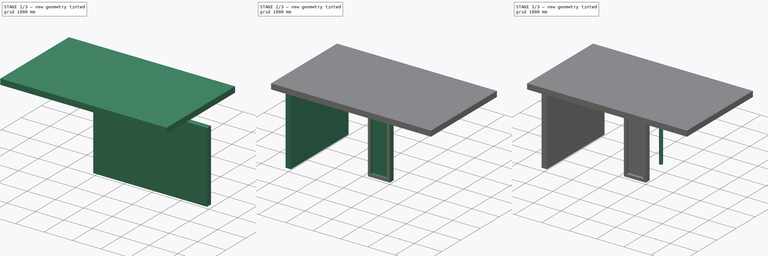
[diagram: build sequence overview — one tinted view per stage of 3, left to right]
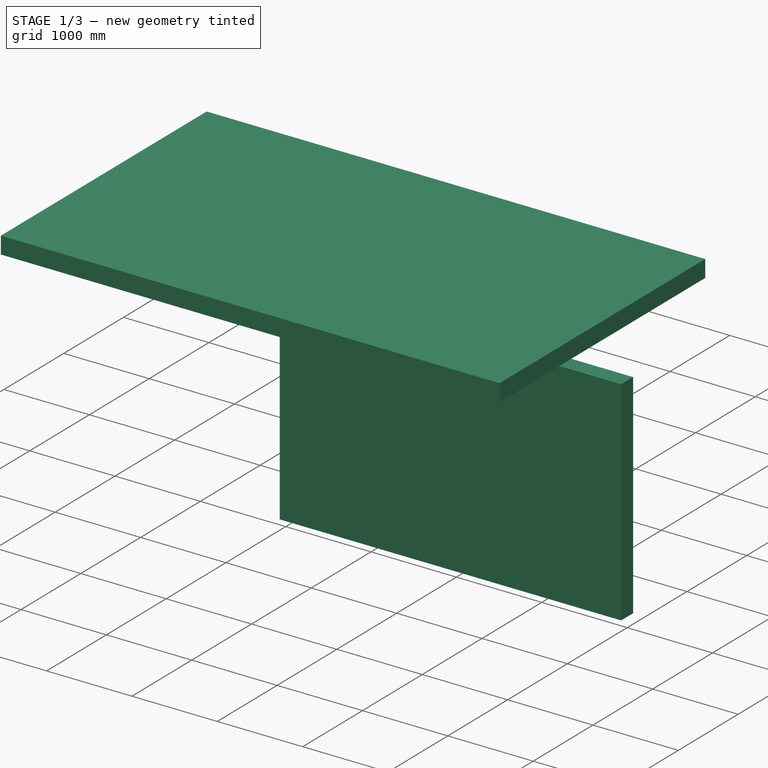
[diagram: stage 1 of 3 — iso view after this stage's code; geometry added in this stage tinted green]
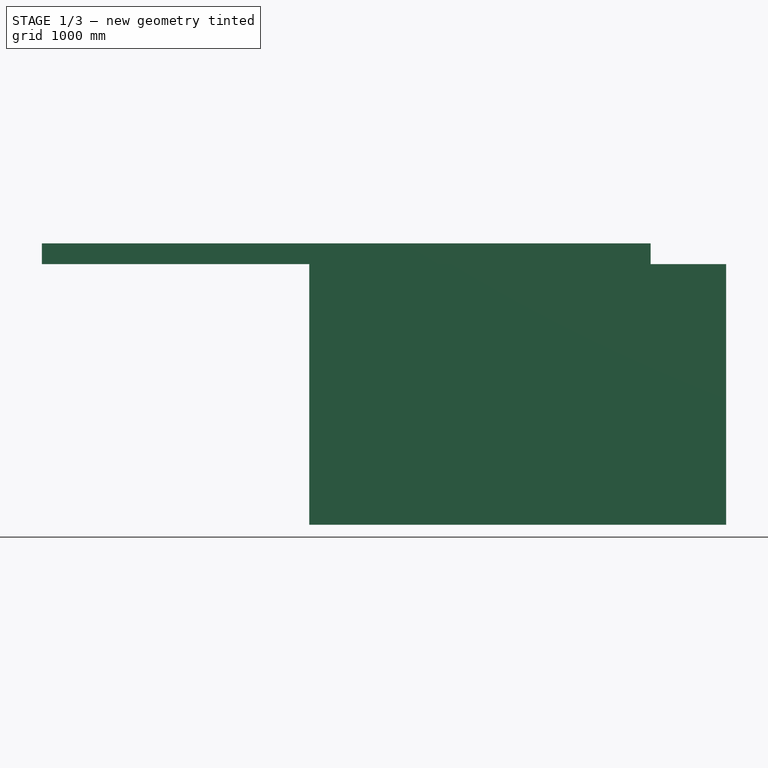
[diagram: stage 1 of 3 — front view after this stage's code; geometry added in this stage tinted green]
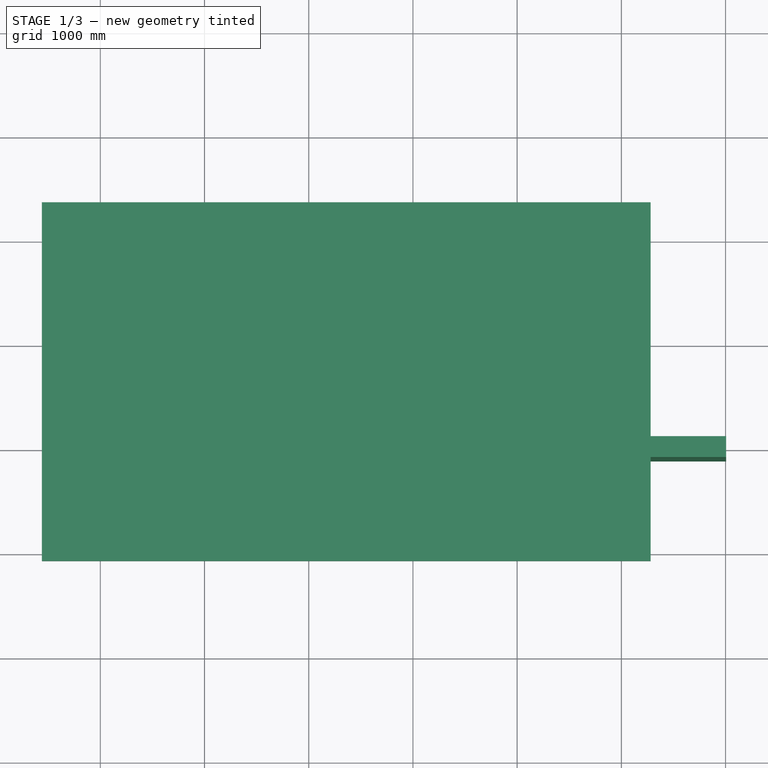
[diagram: stage 1 of 3 — top view after this stage's code; geometry added in this stage tinted green]
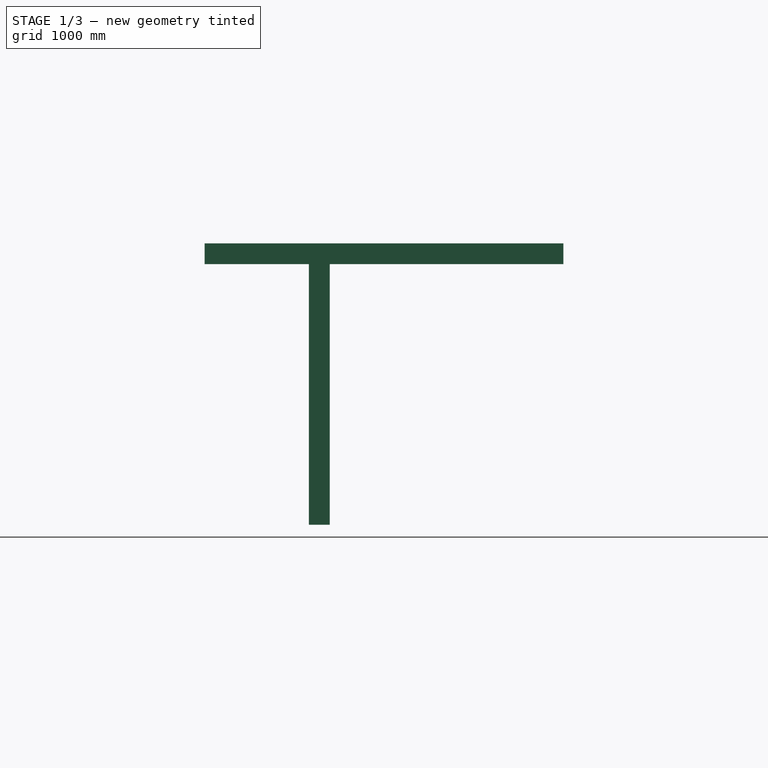
[diagram: stage 1 of 3 — right view after this stage's code; geometry added in this stage tinted green]
FCSTD DOCUMENT  (FreeCAD 0.19R24366 (Git))
Label: BimTutorial
License: All rights reserved
LicenseURL: http://en.wikipedia.org/wiki/All_rights_reserved
objects: Part::Part2DObjectPython×6, Part::FeaturePython×6, App::FeaturePython×4, Sketcher::SketchObject×1, App::DocumentObjectGroup×1, App::GeometryPython×1, TechDraw::DrawSVGTemplate×1, TechDraw::DrawViewArch×1, TechDraw::DrawPage×1
note: 16 computed .brp shape members not serialized (recipe doc carries the construction recipe); baked Part::Feature solids carry a one-line shape summary decoded from their .brp

FEATURE [Part::Part2DObjectPython] Line001  label="wall2line"  # Draft 2D object (typed FeaturePython)
  Area = 0
  ChamferSize = 0
  Closed = false
  End = (6004.87,993.111,0)
  FilletRadius = 0
  Length = 4000
  MakeFace = true
  Placement = pos=(1004.87,-6.88866,0) rot=(0,0,1;0rad)
  Points = (2) [(1000,1000,0),(5000,1000,0)]
  Start = (2004.87,993.111,0)
  Subdivisions = 0
FEATURE [Part::FeaturePython] Wall001  label="wall2"  # Arch/BIM 166 (typed FeaturePython)
  Align = 2
  Area = 10000000
  Base = -> Line001
  BlockHeight = 0
  BlockLength = 0
  CountBroken = 0
  CountEntire = 0
  Face = 0
  GlobalId = 09lF_A4UX7CefGfUJ7Y7Hv
  Height = 2500
  HorizontalArea = 960000
  IfcData = IfcUID=09lF_A4UX7CefGfUJ7Y7Hv,+2 more (map truncated)
  IfcType = 166
  Joint = 0
  Length = 4000
  MakeBlocks = false
  MoveBase = false
  MoveWithHost = false
  Normal = (0,0,0)
  OffsetFirst = 0
  OffsetSecond = 0
  PerimeterLength = 8400
  PredefinedType = 0
  VerticalArea = 1.848e+07
  Width = 200
FEATURE [Part::Part2DObjectPython] Rectangle  # Draft 2D object (typed FeaturePython)
  Area = 2.0102e+07
  ChamferSize = 0
  Columns = 1
  FilletRadius = 0
  Height = 3441.66
  Length = 5840.78
  MakeFace = true
  Placement = pos=(-560.212,-107.375,0) rot=(0,0,1;0rad)
  Rows = 1
FEATURE [Part::FeaturePython] Structure  label="Ceiling"  # Arch/BIM 118 (typed FeaturePython)
  Base = -> Rectangle
  FaceMaker = 0
  GlobalId = 3VQ3lJSsHCoPSHf$EP3ap4
  Height = 200
  HorizontalArea = 2.0102e+07
  IfcData = IfcUID=3VQ3lJSsHCoPSHf$EP3ap4,+2 more (map truncated)
  IfcType = 118
  Length = 3441.66
  MoveBase = false
  MoveWithHost = false
  Nodes = (4) [(-560.212,-107.375,0),(5280.57,-107.375,0),(5280.57,3334.29,0),(-560.212,3334.29,0)]
  NodesOffset = 0
  Normal = (0,0,0)
  PerimeterLength = 18564.9
  Placement = pos=(0,0,2500) rot=(0,0,1;0rad)
  PredefinedType = 0
  VerticalArea = 3.71298e+06
  Width = 5840.78
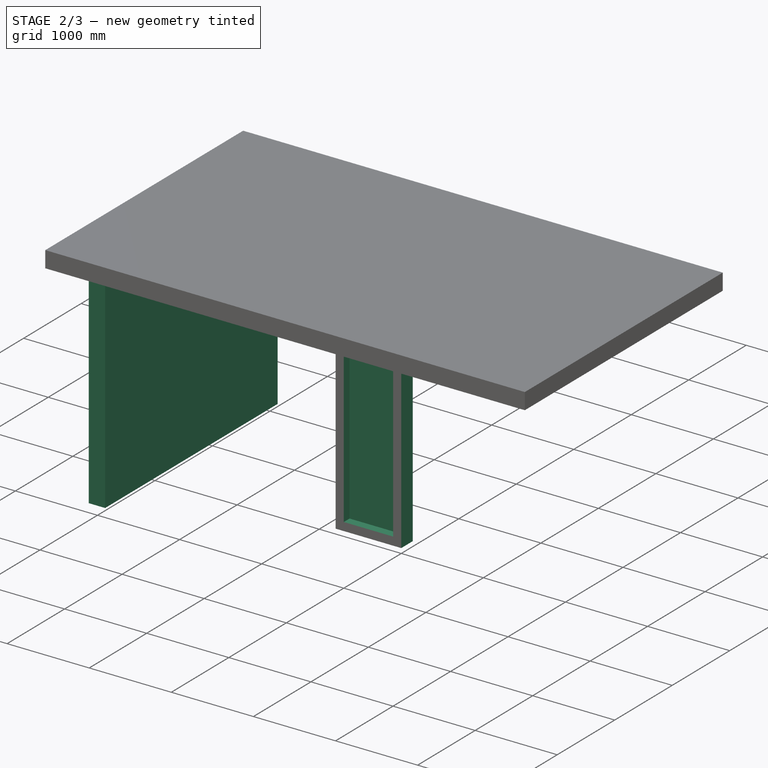
[diagram: stage 2 of 3 — iso view after this stage's code; geometry added in this stage tinted green]
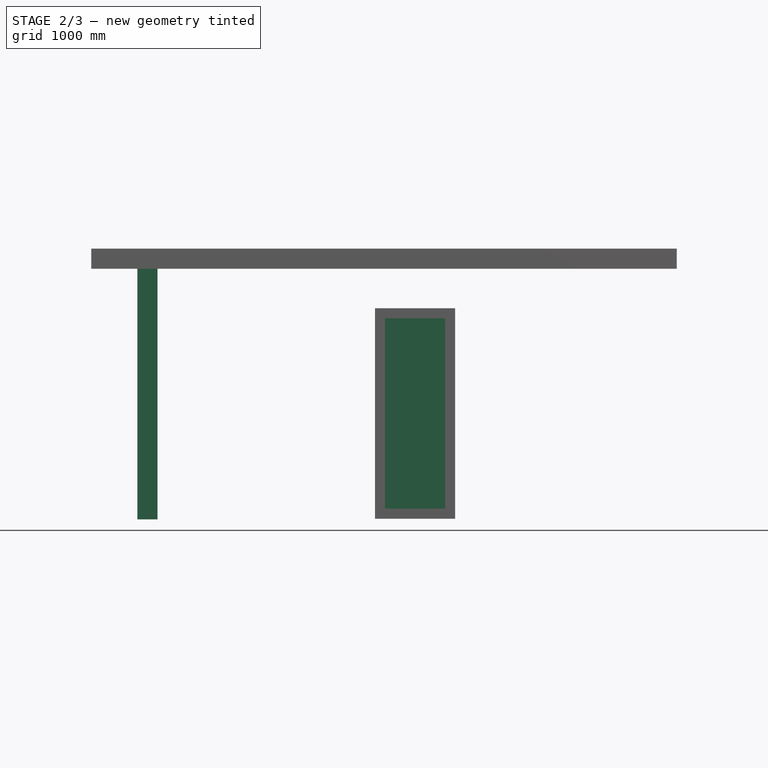
[diagram: stage 2 of 3 — front view after this stage's code; geometry added in this stage tinted green]
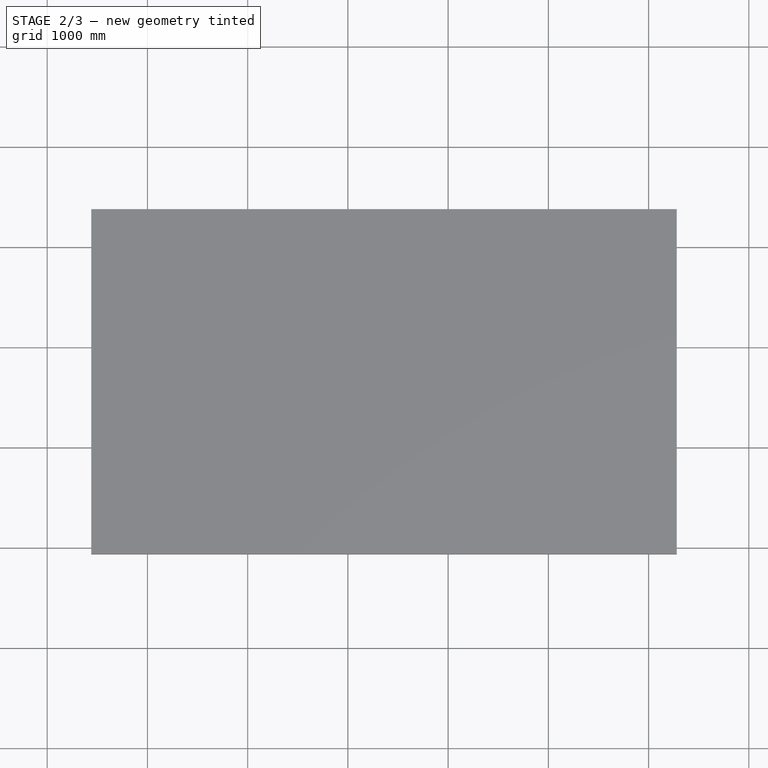
[diagram: stage 2 of 3 — top view after this stage's code; geometry added in this stage tinted green]
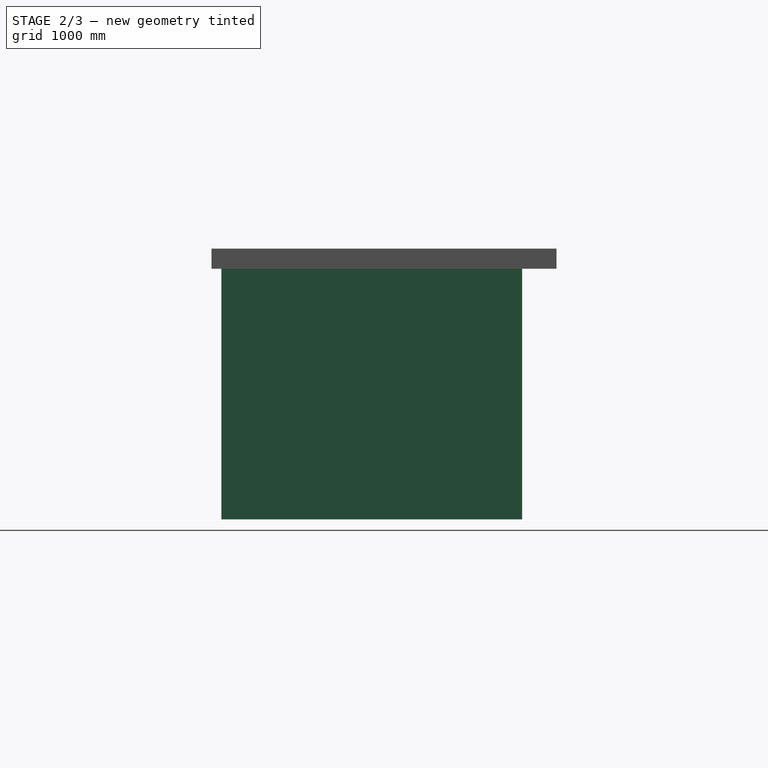
[diagram: stage 2 of 3 — right view after this stage's code; geometry added in this stage tinted green]
FEATURE [Part::Part2DObjectPython] Line  label="wall1line"  # Draft 2D object (typed FeaturePython)
  Area = 0
  ChamferSize = 0
  Closed = false
  End = (-7.69e-14,2991.33,0)
  FilletRadius = 0
  Length = 3000
  MakeFace = true
  Placement = pos=(-1e-15,-8.67306,0) rot=(0,0,1;0rad)
  Points = (2) [(-5.31072e-16,0,0),(-7.58892e-14,3000,0)]
  Start = (-1.5e-15,-8.67306,0)
  Subdivisions = 0
FEATURE [Part::FeaturePython] Wall  label="wall1"  # Arch/BIM 166 (typed FeaturePython)
  Align = 2
  Area = 7500000
  Base = -> Line
  BlockHeight = 0
  BlockLength = 0
  CountBroken = 0
  CountEntire = 0
  Face = 0
  GlobalId = 3$_NsTQLX4zRf5xCG$5I4R
  Height = 2500
  HorizontalArea = 600000
  IfcData = IfcUID=3$_NsTQLX4zRf5xCG$5I4R,+2 more (map truncated)
  IfcType = 166
  Joint = 0
  Length = 3000
  MakeBlocks = false
  MoveBase = false
  MoveWithHost = false
  Normal = (0,0,0)
  OffsetFirst = 0
  OffsetSecond = 0
  PerimeterLength = 6400
  PredefinedType = 0
  VerticalArea = 16000000
  Width = 200
FEATURE [App::FeaturePython] WPProxy  # WARN: FeaturePython — macro-defined, semantics opaque (R4)
FEATURE [Sketcher::SketchObject] Sketch
  FullyConstrained = true
  Placement = pos=(2270.25,900,6.25221) rot=(1,0,0;1.5708rad)
  sketch-geometry (8):
    g0: LineSegment StartX=0 StartY=0 StartZ=0 EndX=800 EndY=0 EndZ=0
    g1: LineSegment StartX=800 StartY=0 StartZ=0 EndX=800 EndY=2100 EndZ=0
    g2: LineSegment StartX=800 StartY=2100 StartZ=0 EndX=0 EndY=2100 EndZ=0
    g3: LineSegment StartX=0 StartY=2100 StartZ=0 EndX=0 EndY=0 EndZ=0
    g4: LineSegment StartX=100 StartY=100 StartZ=0 EndX=700 EndY=100 EndZ=0
    g5: LineSegment StartX=700 StartY=100 StartZ=0 EndX=700 EndY=2000 EndZ=0
    g6: LineSegment StartX=700 StartY=2000 StartZ=0 EndX=100 EndY=2000 EndZ=0
    g7: LineSegment StartX=100 StartY=2000 StartZ=0 EndX=100 EndY=100 EndZ=0
  constraints (23):
    c: Coincident(g0,g1)
    c: Coincident(g1,g2)
    c: Coincident(g2,g3)
    c: Coincident(g3,g0)
    c: Horizontal(g0)
    c: Horizontal(g2)
    c: Vertical(g1)
    c: Vertical(g3)
    c: Coincident(g4,g5)
    c: Coincident(g5,g6)
    c: Coincident(g6,g7)
    c: Coincident(g7,g4)
    c: Horizontal(g4)
    c: Horizontal(g6)
    c: Vertical(g5)
    c: Vertical(g7)
    c: DistanceY(g1) = 2100  'Height'
    c: DistanceX(g0) = 800  'Width'
    c: DistanceY(g6,g2) = 100  'Frame1'
    c: DistanceX(g2,g6) = 100  'Frame2'
    c: DistanceX(g4,g0) = 100  'Frame3'
    c: DistanceY(g0,g4) = 100  'Frame4'
    c: Coincident(g0,g-1)
FEATURE [Part::FeaturePython] Window  label="wall2glassdoor"  # Arch/BIM 170 (typed FeaturePython)
  Area = 1680000
  Base = -> Sketch
  Frame = 100
  GlobalId = 2pobVmIR9ExuPnQbmOMNSd
  Height = 2100
  HoleDepth = 0
  HoleWire = 0
  HorizontalArea = 0
  Hosts = -> [Wall001]
  IfcData = IfcUID=2pobVmIR9ExuPnQbmOMNSd,+2 more (map truncated)
  IfcType = 170
  LouvreSpacing = 0
  LouvreWidth = 0
  MoveBase = false
  MoveWithHost = true
  Normal = (1e-16,1,-2e-16)
  Opening = 0
  OverallHeight = 2100
  OverallWidth = 800
  PartitioningType = 0
  PerimeterLength = 0
  PredefinedType = 0
  Preset = 1
  SymbolElevation = false
  SymbolPlan = false
  VerticalArea = 0
  Width = 800
  WindowParts = OuterFrame | Frame | Wire0,Wire1 | 100.0+V | 0.00+V | Glass | Glass panel | Wire1 | 20.0 | 100.0+V
  expr: OverallHeight = .Height.Value
  expr: OverallWidth = .Width.Value
FEATURE [App::FeaturePython] Dimension  # Draft dimension (typed FeaturePython)
  Diameter = false
  Dimline = (3769.92,-296.473,0)
  Direction = (0,0,0)
  Distance = 6111.37
  End = (6012.22,-21.6815,0)
  Normal = (0,0,1)
  Start = (-99.1539,-21.6815,0)
FEATURE [App::FeaturePython] Text  # WARN: FeaturePython — macro-defined, semantics opaque (R4)
  Placement = pos=(2353.8,567.087,0) rot=(0,0,1;0rad)
  Text = Terrace
FEATURE [App::DocumentObjectGroup] Group  label="Annotations"
  Group = -> [Dimension,Text]
FEATURE [App::GeometryPython] BuildingPart  label="Floor1"  # Arch/BIM 14 (typed FeaturePython)
  Area = 17500000
  CompositionType = 0
  Elevation = 0
  GlobalId = 1y_DgLF_v4fQP4vvvmF4RS
  Group = -> [Wall,Wall001,Structure,Group]
  Height = 0
  HeightPropagate = true
  IfcData = IfcUID=1y_DgLF_v4fQP4vvvmF4RS,+2 more (map truncated)
  IfcType = 14
  LevelOffset = 0
  LongName = Floor
  expr: Elevation = .Placement.Base.z
FEATURE [App::FeaturePython] Section  # WARN: FeaturePython — macro-defined, semantics opaque (R4)
  Clip = false
  Objects = -> [BuildingPart]
  OnlySolids = true
  Placement = pos=(2722.33,1613.46,1350) rot=(0,0,1;0rad)
  UseMaterialColorForFill = false
FEATURE [Part::Part2DObjectPython] Shape2DView  # Draft 2D object (typed FeaturePython)
  Base = -> Section
  FuseArch = false
  HiddenLines = false
  InPlace = true
  Projection = (0.57735,-0.57735,0.57735)
  ProjectionMode = 3
  SegmentLength = 0.05
  Tessellation = false
  VisibleOnly = false
FEATURE [TechDraw::DrawSVGTemplate] Template
  EditableTexts = Designed_by_Name=Designed by Name; Drawing_number=Drawing number; FC-Date=Date; FC-SC=Scale; FC-SH=Sheet; FC-Title=Title; Subtitle=Subtitle; Weight=Weight
  Height = 210
  Orientation = 1
  Width = 297
FEATURE [TechDraw::DrawViewArch] ArchView
  AllOn = false
  CutLineWidth = 0.5
  FillSpaces = false
  FontSize = 12
  JoinArch = false
  LineWidth = 0.25
  LockPosition = false
  RenderMode = 0
  Rotation = 0
  Scale = 0.02
  ScaleType = 2
  ShowFill = false
  ShowHidden = false
  Source = -> Section
  Symbol = <blob: 5476 chars omitted>
  X = 148.5
  Y = 105
FEATURE [TechDraw::DrawPage] Page
  KeepUpdated = true
  NextBalloonIndex = 1
  ProjectionType = 0
  Template = -> Template
  Views = -> [ArchView]
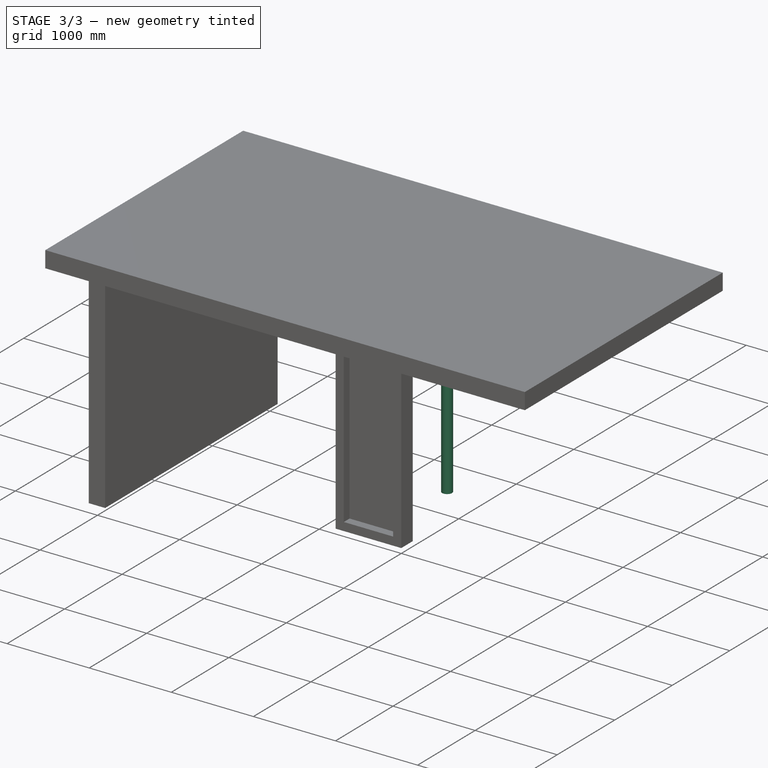
[diagram: stage 3 of 3 — iso view after this stage's code; geometry added in this stage tinted green]
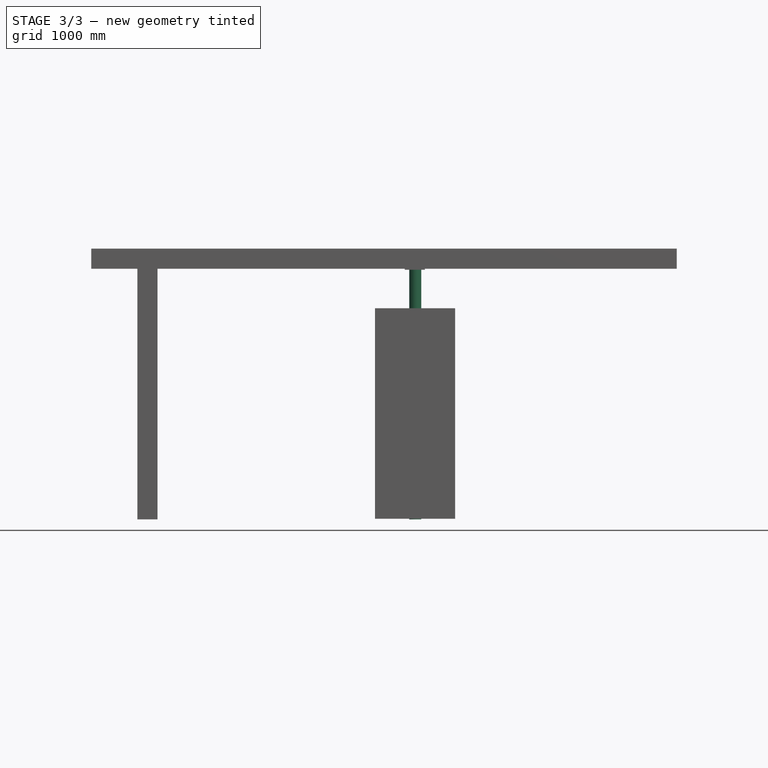
[diagram: stage 3 of 3 — front view after this stage's code; geometry added in this stage tinted green]
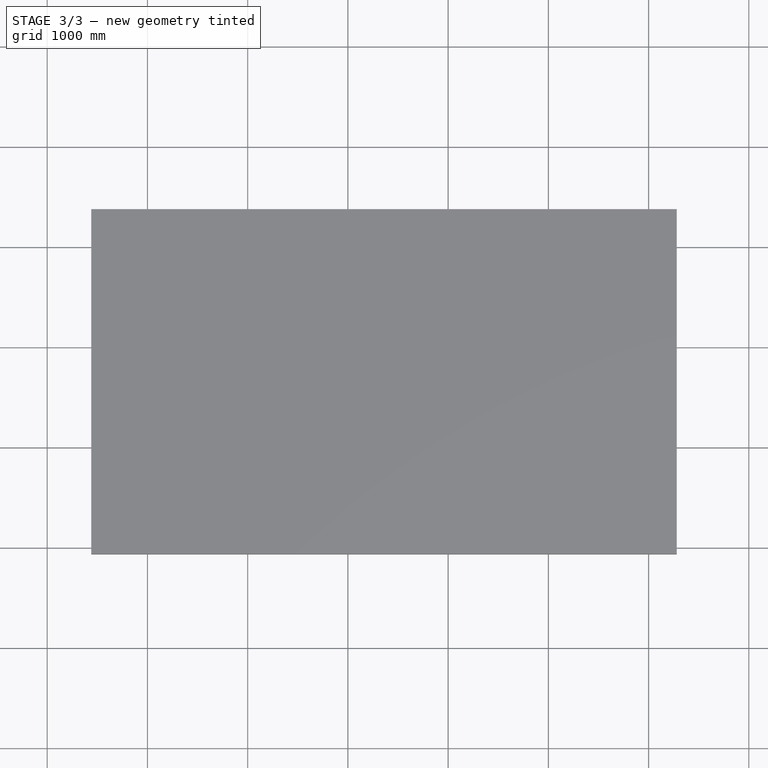
[diagram: stage 3 of 3 — top view after this stage's code; geometry added in this stage tinted green]
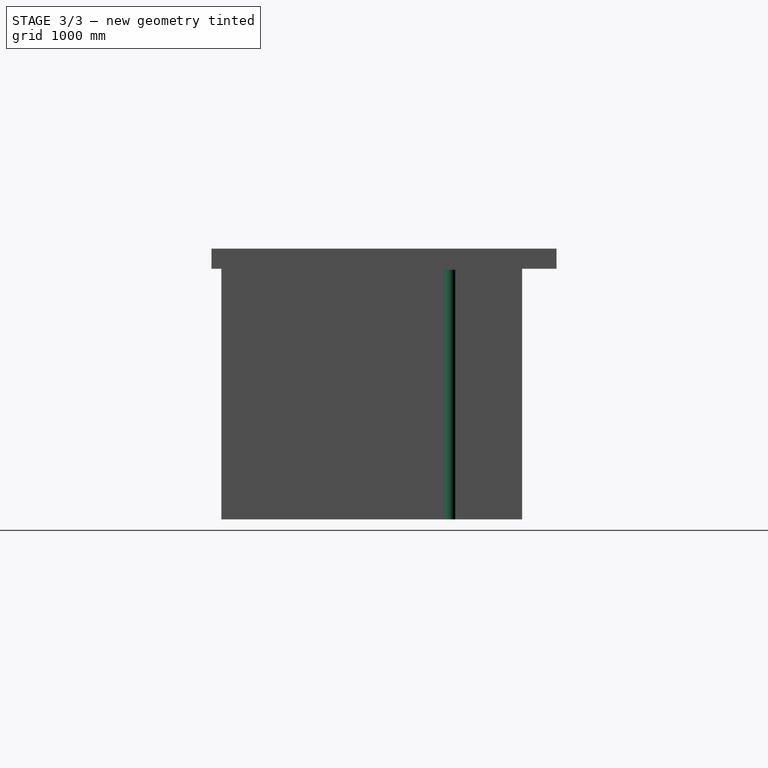
[diagram: stage 3 of 3 — right view after this stage's code; geometry added in this stage tinted green]
FEATURE [Part::Part2DObjectPython] CTH423  # Draft 2D object (typed FeaturePython)
  OutDiameter = 120
  Thickness = 8
FEATURE [Part::Part2DObjectPython] Rectangle001  # Draft 2D object (typed FeaturePython)
  Area = 40000
  ChamferSize = 0
  Columns = 1
  FilletRadius = 0
  Height = 200
  Length = 200
  MakeFace = true
  Placement = pos=(2567.71,2163.96,2490) rot=(0,0,1;0rad)
  Rows = 1
FEATURE [Part::FeaturePython] Structure002  label="Slab001"  # Arch/BIM 118 (typed FeaturePython)
  Base = -> Rectangle001
  FaceMaker = 0
  Height = 10
  HorizontalArea = 40000
  IfcData = attributes={"GlobalId": {"name": "GlobalId", "type": "IfcGloballyUniqueId", "is_enum": false, "enum_values": []}, "Description": {"... (+453 chars omitted),+1 more (map truncated)
  IfcType = 118
  Length = 200
  MoveBase = false
  MoveWithHost = false
  Nodes = (4) [(2567.71,2163.96,2490),(2767.71,2163.96,2490),(2767.71,2363.96,2490),(2567.71,2363.96,2490)]
  NodesOffset = 0
  Normal = (0,0,0)
  PerimeterLength = 800
  PredefinedType = 0
  VerticalArea = 8000
  Width = 200
FEATURE [Part::FeaturePython] Structure001  label="Column"  # Arch/BIM 24 (typed FeaturePython)
  Additions = -> [Structure002]
  Base = -> CTH423
  FaceMaker = 0
  Height = 2490
  HorizontalArea = 40000
  IfcData = attributes={"GlobalId": {"name": "GlobalId", "type": "IfcGloballyUniqueId", "is_enum": false, "enum_values": []}, "Description": {"... (+438 chars omitted),+1 more (map truncated)
  IfcType = 24
  Length = 0
  MoveBase = false
  MoveWithHost = false
  Nodes = (2) [(4.10652e-09,3.41153e-14,0),(4.10652e-09,3.41153e-14,2490)]
  NodesOffset = 0
  Normal = (0,0,0)
  PerimeterLength = 800
  Placement = pos=(2671.96,2265.98,0) rot=(0,0,1;0rad)
  PredefinedType = 0
  Profile = CTH423
  VerticalArea = 1.76025e+06
  Width = 3.2
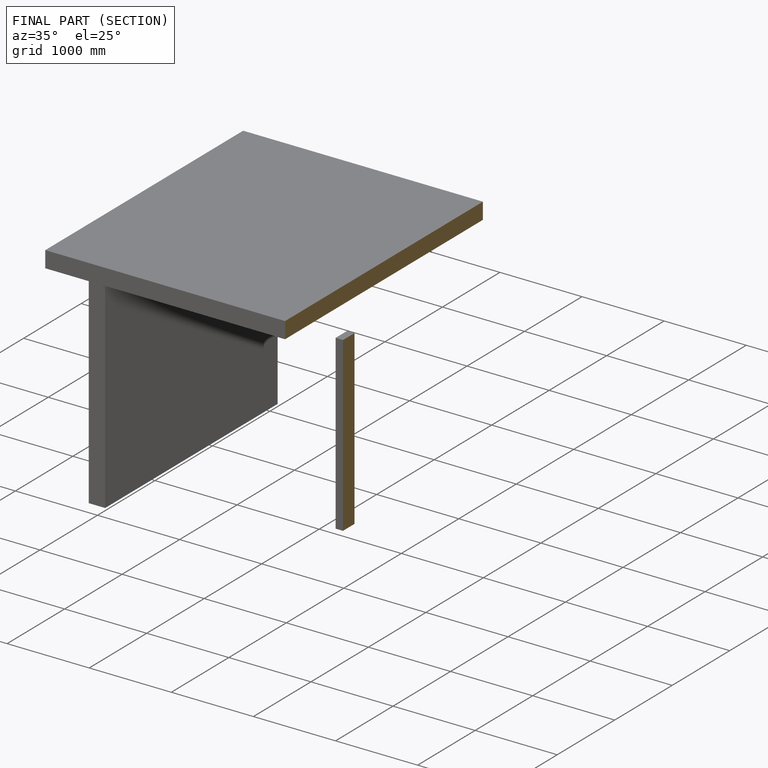
[diagram: finished part — half-section view (interior)]
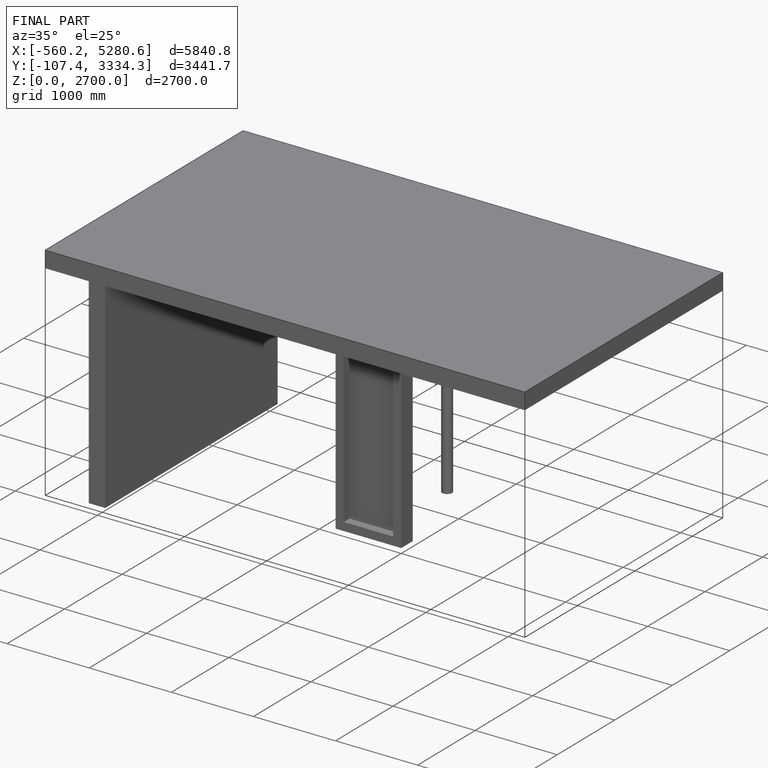
[diagram: finished part — iso view with bounding-box wireframe]
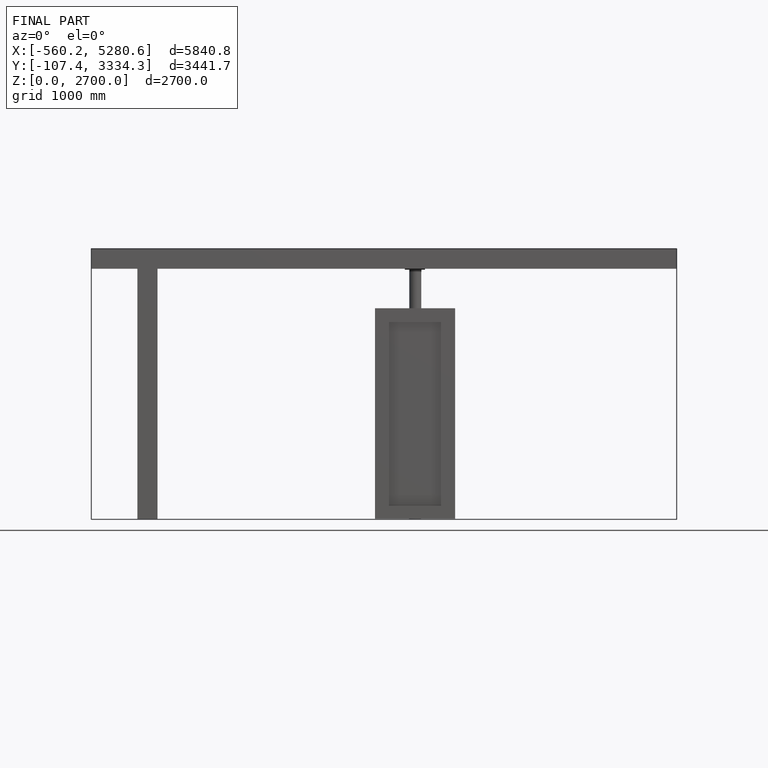
[diagram: finished part — front view with bounding-box wireframe]
